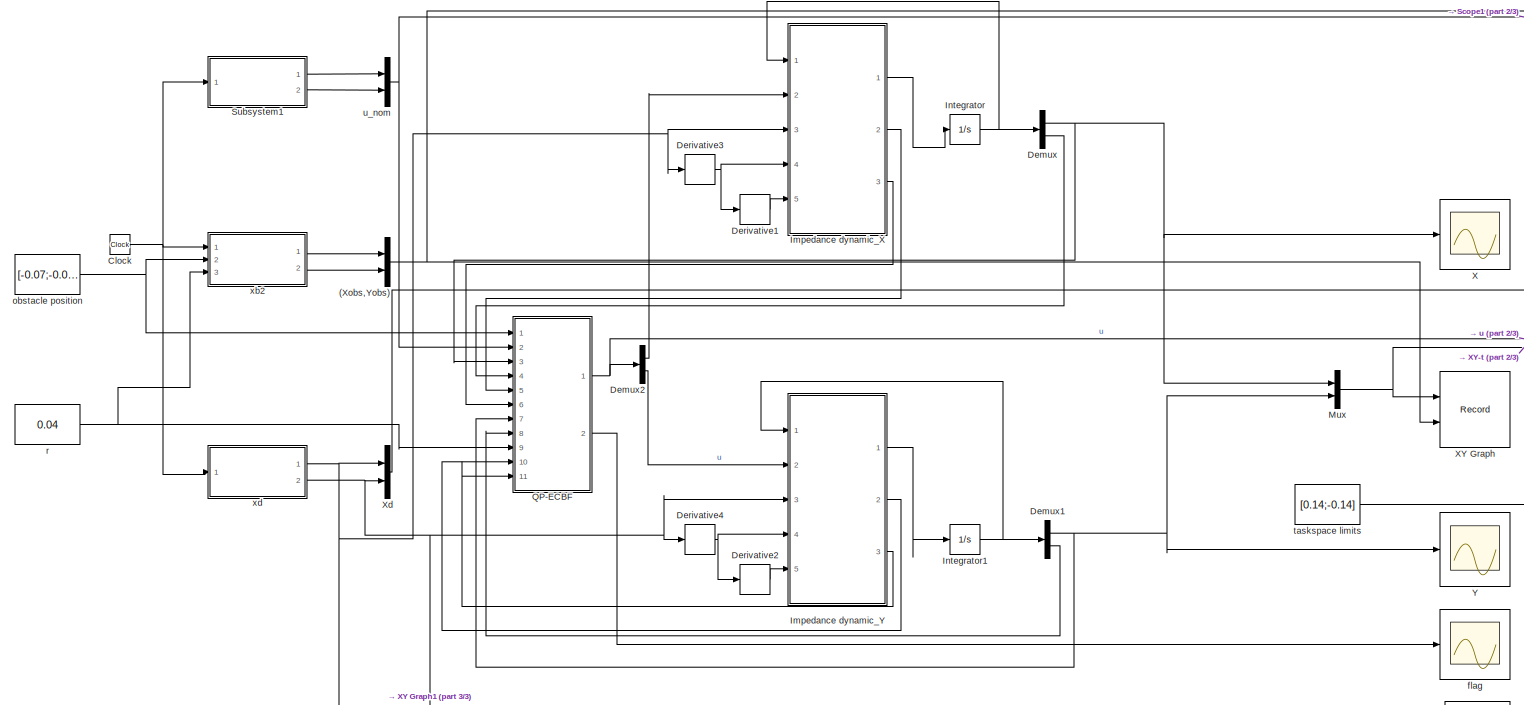
[diagram: root canvas - part 1/3, most of the canvas]
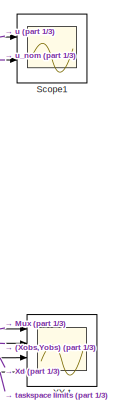
[diagram: root canvas - part 2/3, middle right region]
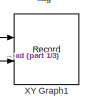
[diagram: root canvas - part 3/3, bottom right region]
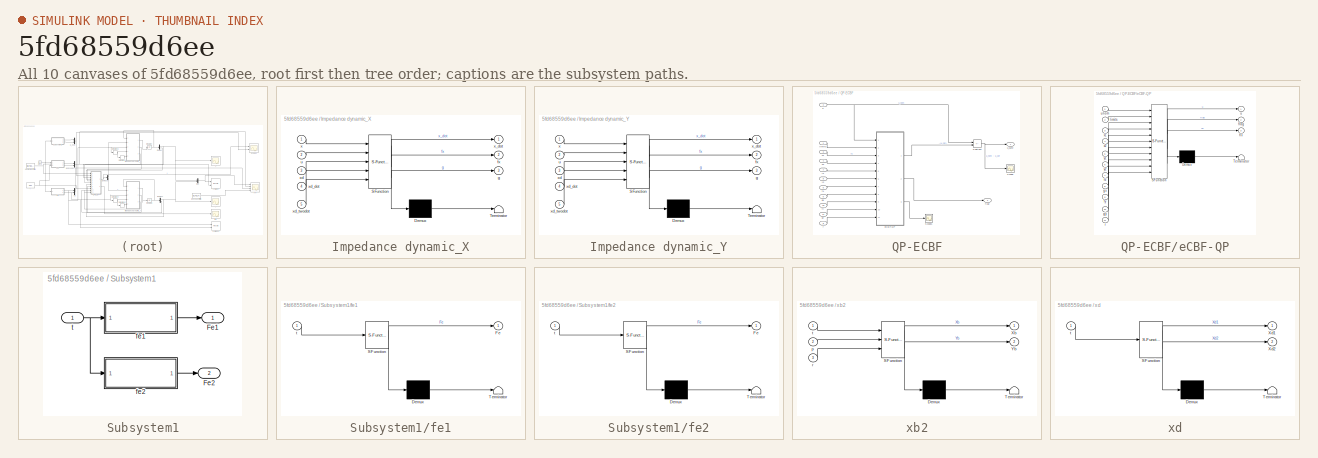
[diagram: thumbnail index - all 10 canvases of the model, root first then tree order]
MODEL slx_5fd68559d6ee
KIND model
CONFIG AbsTol = auto
CONFIG EnableMultiTasking = off
CONFIG FixedStep = 0.01
CONFIG MaxStep = auto
CONFIG MinStep = auto
CONFIG RelTol = 1e-3
CONFIG SampleTimeConstraint = Unconstrained
CONFIG SolverName = ode4
CONFIG StartTime = 0.0
CONFIG StopTime = 30
BLOCK [Mux] (Xobs,Yobs)
  DisplayOption = bar
  Inputs = 2
  NameLocation = left
  Ports = [2, 1]
BLOCK [Clock] Clock
BLOCK [Demux] Demux
  Outputs = 2
  Ports = [1, 2]
BLOCK [Demux] Demux1
  Outputs = 2
  Ports = [1, 2]
BLOCK [Demux] Demux2
  Outputs = 2
  Ports = [1, 2]
BLOCK [Derivative] Derivative1
BLOCK [Derivative] Derivative2
BLOCK [Derivative] Derivative3
BLOCK [Derivative] Derivative4
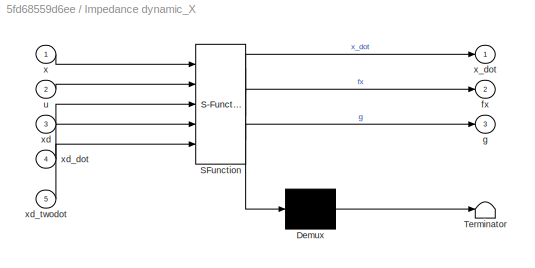
BLOCK [SubSystem] Impedance dynamic_X
  ErrorFcn = Stateflow.Translate.translate
  PermitHierarchicalResolution = ExplicitOnly
  Ports = [5, 3]
  RequestExecContextInheritance = off
  SFBlockType = MATLAB Function
  TreatAsAtomicUnit = on
BLOCK [Demux] Impedance dynamic_X/ Demux 
  Outputs = 1
  Ports = [1, 1]
BLOCK [S-Function] Impedance dynamic_X/ SFunction 
  EnableBusSupport = on
  FunctionName = sf_sfun
  PortCounts = [5 4]
  Ports = [5, 4]
  SFcnIsStateOwnerBlock = off
  SFunctionDeploymentMode = off
  Tag = Stateflow S-Function 7
BLOCK [Terminator] Impedance dynamic_X/ Terminator 
BLOCK [Outport] Impedance dynamic_X/fx
  Port = 2
BLOCK [Outport] Impedance dynamic_X/g
  Port = 3
BLOCK [Inport] Impedance dynamic_X/u
  Port = 2
BLOCK [Inport] Impedance dynamic_X/x
BLOCK [Outport] Impedance dynamic_X/x_dot
BLOCK [Inport] Impedance dynamic_X/xd
  Port = 3
BLOCK [Inport] Impedance dynamic_X/xd_dot
  Port = 4
BLOCK [Inport] Impedance dynamic_X/xd_twodot
  Port = 5
BLOCK [SubSystem] Impedance dynamic_Y
  ErrorFcn = Stateflow.Translate.translate
  PermitHierarchicalResolution = ExplicitOnly
  Ports = [5, 3]
  RequestExecContextInheritance = off
  SFBlockType = MATLAB Function
  TreatAsAtomicUnit = on
BLOCK [Demux] Impedance dynamic_Y/ Demux 
  Outputs = 1
  Ports = [1, 1]
BLOCK [S-Function] Impedance dynamic_Y/ SFunction 
  EnableBusSupport = on
  FunctionName = sf_sfun
  PortCounts = [5 4]
  Ports = [5, 4]
  SFcnIsStateOwnerBlock = off
  SFunctionDeploymentMode = off
  Tag = Stateflow S-Function 1
BLOCK [Terminator] Impedance dynamic_Y/ Terminator 
BLOCK [Outport] Impedance dynamic_Y/fx
  Port = 2
BLOCK [Outport] Impedance dynamic_Y/g
  Port = 3
BLOCK [Inport] Impedance dynamic_Y/u
  Port = 2
BLOCK [Inport] Impedance dynamic_Y/x
BLOCK [Outport] Impedance dynamic_Y/x_dot
BLOCK [Inport] Impedance dynamic_Y/xd
  Port = 3
BLOCK [Inport] Impedance dynamic_Y/xd_dot
  Port = 4
BLOCK [Inport] Impedance dynamic_Y/xd_twodot
  Port = 5
BLOCK [Integrator] Integrator
  InitialCondition = [0.14;0]
  Ports = [1, 1]
BLOCK [Integrator] Integrator1
  InitialCondition = [0;0]
  Ports = [1, 1]
BLOCK [Mux] Mux
  DisplayOption = bar
  Inputs = 2
  Ports = [2, 1]
BLOCK [SubSystem] QP-ECBF
  Ports = [11, 2]
  RequestExecContextInheritance = off
BLOCK [Scope] QP-ECBF/Scope
  Floating = off
  NumInputPorts = 1
  Ports = [1]
  ScopeSpecificationString = Simulink.scopes.TimeScopeBlockCfg('CurrentConfiguration', extmgr.ConfigurationSet(extmgr.Configuration('Core','General UI',true),extmgr.Configuration('Core','Source UI',true),extmgr.Configuration('Sources','WiredSimulink',true,'DataLoggingVariableName','ScopeData1'),extmgr.Configuration('Visuals','Time Domain',true,'SerializedDisplays',{struct('MinYLimReal','-74.07676','MaxYLimReal','62.38981','YL...<+1473ch>
BLOCK [Scope] QP-ECBF/Scope1
  Floating = off
  NumInputPorts = 1
  Ports = [1]
  ScopeSpecificationString = Simulink.scopes.TimeScopeBlockCfg('CurrentConfiguration', extmgr.ConfigurationSet(extmgr.Configuration('Core','General UI',true),extmgr.Configuration('Core','Source UI',true),extmgr.Configuration('Sources','WiredSimulink',true,'DataLoggingVariableName','ScopeData2'),extmgr.Configuration('Visuals','Time Domain',true,'SerializedDisplays',{struct('MinYLimReal','-0.00755','MaxYLimReal','0.06731','YLab...<+1444ch>
BLOCK [Sum] QP-ECBF/Subtract
  IconShape = rectangular
  Inputs = +-
  Ports = [2, 1]
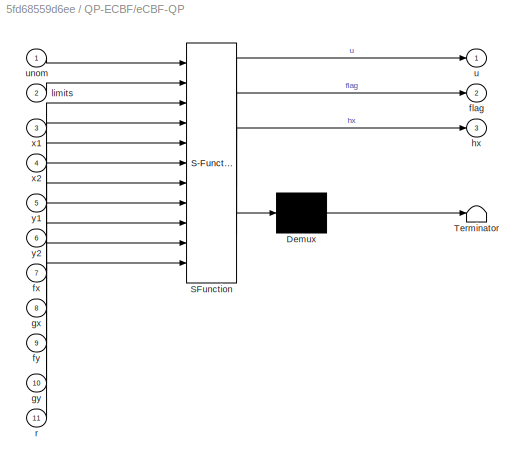
BLOCK [SubSystem] QP-ECBF/eCBF-QP
  ErrorFcn = Stateflow.Translate.translate
  PermitHierarchicalResolution = ExplicitOnly
  Ports = [11, 3]
  RequestExecContextInheritance = off
  SFBlockType = MATLAB Function
  TreatAsAtomicUnit = on
BLOCK [Demux] QP-ECBF/eCBF-QP/ Demux 
  Outputs = 1
  Ports = [1, 1]
BLOCK [S-Function] QP-ECBF/eCBF-QP/ SFunction 
  EnableBusSupport = on
  FunctionName = sf_sfun
  PortCounts = [11 4]
  Ports = [11, 4]
  SFcnIsStateOwnerBlock = off
  SFunctionDeploymentMode = off
  Tag = Stateflow S-Function 6
BLOCK [Terminator] QP-ECBF/eCBF-QP/ Terminator 
BLOCK [Outport] QP-ECBF/eCBF-QP/flag
  Port = 2
BLOCK [Inport] QP-ECBF/eCBF-QP/fx
  Port = 7
BLOCK [Inport] QP-ECBF/eCBF-QP/fy
  Port = 9
BLOCK [Inport] QP-ECBF/eCBF-QP/gx
  Port = 8
BLOCK [Inport] QP-ECBF/eCBF-QP/gy
  Port = 10
BLOCK [Outport] QP-ECBF/eCBF-QP/hx
  Port = 3
BLOCK [Inport] QP-ECBF/eCBF-QP/limits
  Port = 2
BLOCK [Inport] QP-ECBF/eCBF-QP/r
  Port = 11
BLOCK [Outport] QP-ECBF/eCBF-QP/u
BLOCK [Inport] QP-ECBF/eCBF-QP/unom
BLOCK [Inport] QP-ECBF/eCBF-QP/x1
  Port = 3
BLOCK [Inport] QP-ECBF/eCBF-QP/x2
  Port = 4
BLOCK [Inport] QP-ECBF/eCBF-QP/y1
  Port = 5
BLOCK [Inport] QP-ECBF/eCBF-QP/y2
  Port = 6
BLOCK [Outport] QP-ECBF/flag
  Port = 2
BLOCK [Inport] QP-ECBF/fx
  Port = 5
BLOCK [Inport] QP-ECBF/fy
  Port = 10
BLOCK [Inport] QP-ECBF/gx
  Port = 6
BLOCK [Inport] QP-ECBF/gy
  Port = 11
BLOCK [Inport] QP-ECBF/limits
  NameLocation = left
BLOCK [Inport] QP-ECBF/r
  Port = 9
BLOCK [Inport] QP-ECBF/u
  NameLocation = left
  Port = 2
BLOCK [Outport] QP-ECBF/u_safe
  NameLocation = right
BLOCK [Inport] QP-ECBF/x1
  Port = 3
BLOCK [Inport] QP-ECBF/x2
  Port = 4
BLOCK [Inport] QP-ECBF/y1
  Port = 7
BLOCK [Inport] QP-ECBF/y2
  Port = 8
BLOCK [Scope] Scope1
  Floating = off
  NumInputPorts = 2
  Ports = [2]
  ScopeSpecificationString = Simulink.scopes.TimeScopeBlockCfg('CurrentConfiguration', extmgr.ConfigurationSet(extmgr.Configuration('Core','General UI',true),extmgr.Configuration('Core','Source UI',true),extmgr.Configuration('Sources','WiredSimulink',true,'DataLoggingVariableName','fe','DataLogging',true,'DataLoggingSaveFormat','StructureWithTime'),extmgr.Configuration('Visuals','Time Domain',true,'SerializedDisplays',{struct...<+1497ch>
BLOCK [SubSystem] Subsystem1
  Ports = [1, 2]
  RequestExecContextInheritance = off
BLOCK [Outport] Subsystem1/Fe1
BLOCK [Outport] Subsystem1/Fe2
  Port = 2
BLOCK [SubSystem] Subsystem1/fe1
  ErrorFcn = Stateflow.Translate.translate
  PermitHierarchicalResolution = ExplicitOnly
  Ports = [1, 1]
  RequestExecContextInheritance = off
  SFBlockType = MATLAB Function
  TreatAsAtomicUnit = on
BLOCK [Demux] Subsystem1/fe1/ Demux 
  Outputs = 1
  Ports = [1, 1]
BLOCK [S-Function] Subsystem1/fe1/ SFunction 
  EnableBusSupport = on
  FunctionName = sf_sfun
  PortCounts = [1 2]
  Ports = [1, 2]
  SFcnIsStateOwnerBlock = off
  SFunctionDeploymentMode = off
  Tag = Stateflow S-Function 2
BLOCK [Terminator] Subsystem1/fe1/ Terminator 
BLOCK [Outport] Subsystem1/fe1/Fe
BLOCK [Inport] Subsystem1/fe1/t
BLOCK [SubSystem] Subsystem1/fe2
  ErrorFcn = Stateflow.Translate.translate
  PermitHierarchicalResolution = ExplicitOnly
  Ports = [1, 1]
  RequestExecContextInheritance = off
  SFBlockType = MATLAB Function
  TreatAsAtomicUnit = on
BLOCK [Demux] Subsystem1/fe2/ Demux 
  Outputs = 1
  Ports = [1, 1]
BLOCK [S-Function] Subsystem1/fe2/ SFunction 
  EnableBusSupport = on
  FunctionName = sf_sfun
  PortCounts = [1 2]
  Ports = [1, 2]
  SFcnIsStateOwnerBlock = off
  SFunctionDeploymentMode = off
  Tag = Stateflow S-Function 4
BLOCK [Terminator] Subsystem1/fe2/ Terminator 
BLOCK [Outport] Subsystem1/fe2/Fe
BLOCK [Inport] Subsystem1/fe2/t
BLOCK [Inport] Subsystem1/t
BLOCK [Scope] X
  Floating = off
  NumInputPorts = 1
  Ports = [1]
  ScopeSpecificationString = Simulink.scopes.TimeScopeBlockCfg('CurrentConfiguration', extmgr.ConfigurationSet(extmgr.Configuration('Core','General UI',true),extmgr.Configuration('Core','Source UI',true),extmgr.Configuration('Sources','WiredSimulink',true,'DataLoggingVariableName','ScopeData1'),extmgr.Configuration('Visuals','Time Domain',true,'SerializedDisplays',{struct('MinYLimReal','-0.15066','MaxYLimReal','0.20888','YLab...<+1397ch>
BLOCK [Record] XY Graph
  CompatibilityTag = XY
  FileSettingsInternal = {"entries":[{"content":{"excelSettings":{"content":{},"type":"Streamout.ExcelSettings"}},"type":"Streamout.FileSettingStorage","uuid":"2cb9fd5d-0c84-4006-89a3-e297fa6ee1b5"}],"packageUris":["http://schema.mathworks.com/mf0/streamout_blocks/R2020a"],"version":"1.0"}
  Layout = [1 1]
  Ports = [2]
  SignalsInternal = {"entries":[{"content":{"signals":[{"content":{"blockPath":["Safety_filter_obstacle_run/XY Graph"],"channel":[],"dimensions":[2],"domain":"Safety_filter_obstacle_run/XY Graph","hasChildren":true,"lineColor":"#fe330a","plots":[],"port":1,"sid":[""],"signalID":5016,"signalName":"Mux"},"type":"RecordBlkView.Signal","uuid":"6b362bb2-f6dd-4a03-85b8-156c16026f8e"},{"content":{"blockPath":["Safety_filter...<+1787ch>
  VisualizationBindings = {"xyplotplugin":{"info":[{"series":[{"bindingParametersList":[{"parameter":"X-Axis","signalID":5022,"signalName":"(Xobs,Yobs)(1)"},{"parameter":"Y-Axis","signalID":5036,"signalName":"(Xobs,Yobs)(2)"}],"seriesID":588},{"bindingParametersList":[{"parameter":"X-Axis","signalID":5017,"signalName":"Mux(1)"},{"parameter":"Y-Axis","signalID":5035,"signalName":"Mux(2)"}],"seriesID":13609}],"subplotID":1}]...<+2ch>
  st = -1
BLOCK [Record] XY Graph1
  CompatibilityTag = XY
  FileSettingsInternal = {"entries":[{"content":{"excelSettings":{"content":{},"type":"Streamout.ExcelSettings"}},"type":"Streamout.FileSettingStorage","uuid":"2cef4229-92dc-4655-bad0-2b3161d59ac8"}],"packageUris":["http://schema.mathworks.com/mf0/streamout_blocks/R2020a"],"version":"1.0"}
  Layout = [1 1]
  Ports = [2]
  SignalsInternal = {"entries":[{"content":{"signals":[{"content":{"blockPath":["Safety_filter_obstacle_run/XY Graph1"],"channel":[],"dimensions":[1],"domain":"Safety_filter_obstacle_run/XY Graph1","lineColor":"#a2142f","plots":[1],"port":1,"sid":[""],"signalID":5026,"signalName":"xd:1"},"type":"RecordBlkView.Signal","uuid":"d43ebe69-de7a-456f-bba9-24daebe6bc4b"},{"content":{"blockPath":["Safety_filter_obstacle_run/X...<+433ch>
  VisualizationBindings = {"xyplotplugin":{"info":[{"series":[{"bindingParametersList":[{"parameter":"X-Axis","signalID":5026,"signalName":"xd:1"},{"parameter":"Y-Axis","signalID":5030,"signalName":"xd:2"}],"seriesID":51409}],"subplotID":1}]}}
BLOCK [Scope] XY-t
  Floating = off
  NumInputPorts = 4
  Ports = [4]
  ScopeSpecificationString = Simulink.scopes.TimeScopeBlockCfg('CurrentConfiguration', extmgr.ConfigurationSet(extmgr.Configuration('Core','General UI',true),extmgr.Configuration('Core','Source UI',true),extmgr.Configuration('Sources','WiredSimulink',true,'DataLoggingVariableName','XYdata','DataLogging',true,'DataLoggingSaveFormat','StructureWithTime'),extmgr.Configuration('Visuals','Time Domain',true,'SerializedDisplays',{st...<+1553ch>
BLOCK [Mux] Xd
  DisplayOption = bar
  Inputs = 2
  NameLocation = left
  Ports = [2, 1]
BLOCK [Scope] Y
  Floating = off
  NumInputPorts = 1
  Ports = [1]
  ScopeSpecificationString = Simulink.scopes.TimeScopeBlockCfg('CurrentConfiguration', extmgr.ConfigurationSet(extmgr.Configuration('Core','General UI',true),extmgr.Configuration('Core','Source UI',true),extmgr.Configuration('Sources','WiredSimulink',true,'DataLoggingVariableName','ScopeData3'),extmgr.Configuration('Visuals','Time Domain',true,'SerializedDisplays',{struct('MinYLimReal','-0.13895','MaxYLimReal','0.17141','YLab...<+1398ch>
BLOCK [Scope] flag
  Floating = off
  NumInputPorts = 1
  Ports = [1]
  ScopeSpecificationString = Simulink.scopes.TimeScopeBlockCfg('CurrentConfiguration', extmgr.ConfigurationSet(extmgr.Configuration('Core','General UI',true),extmgr.Configuration('Core','Source UI',true),extmgr.Configuration('Sources','WiredSimulink',true,'DataLoggingVariableName','ScopeData3'),extmgr.Configuration('Visuals','Time Domain',true,'SerializedDisplays',{struct('MinYLimReal','0.9','MaxYLimReal','1.1','YLabelReal','...<+1374ch>
BLOCK [Constant] obstacle position
  NameLocation = top
  SampleTime = -1
  Value = [-0.07;-0.07]
  VectorParams1D = off
BLOCK [Constant] r
  NameLocation = top
  SampleTime = -1
  Value = 0.04
  VectorParams1D = off
BLOCK [Constant] taskspace limits
  NameLocation = top
  SampleTime = -1
  Value = [0.14;-0.14]
  VectorParams1D = off
BLOCK [Mux] u_nom
  DisplayOption = bar
  Inputs = 2
  NameLocation = left
  Ports = [2, 1]
BLOCK [SubSystem] xb2
  ErrorFcn = Stateflow.Translate.translate
  PermitHierarchicalResolution = ExplicitOnly
  Ports = [3, 2]
  RequestExecContextInheritance = off
  SFBlockType = MATLAB Function
  TreatAsAtomicUnit = on
BLOCK [Demux] xb2/ Demux 
  Outputs = 1
  Ports = [1, 1]
BLOCK [S-Function] xb2/ SFunction 
  EnableBusSupport = on
  FunctionName = sf_sfun
  PortCounts = [3 3]
  Ports = [3, 3]
  SFcnIsStateOwnerBlock = off
  SFunctionDeploymentMode = off
  Tag = Stateflow S-Function 13
BLOCK [Terminator] xb2/ Terminator 
BLOCK [Outport] xb2/Xb
BLOCK [Outport] xb2/Yb
  Port = 2
BLOCK [Inport] xb2/p
  Port = 2
BLOCK [Inport] xb2/r
  Port = 3
BLOCK [Inport] xb2/t
BLOCK [SubSystem] xd
  ErrorFcn = Stateflow.Translate.translate
  PermitHierarchicalResolution = ExplicitOnly
  Ports = [1, 2]
  RequestExecContextInheritance = off
  SFBlockType = MATLAB Function
  TreatAsAtomicUnit = on
BLOCK [Demux] xd/ Demux 
  Outputs = 1
  Ports = [1, 1]
BLOCK [S-Function] xd/ SFunction 
  EnableBusSupport = on
  FunctionName = sf_sfun
  PortCounts = [1 3]
  Ports = [1, 3]
  SFcnIsStateOwnerBlock = off
  SFunctionDeploymentMode = off
  Tag = Stateflow S-Function 5
BLOCK [Terminator] xd/ Terminator 
BLOCK [Outport] xd/Xd1
BLOCK [Outport] xd/Xd2
  Port = 2
BLOCK [Inport] xd/t
NET (Xobs,Yobs):1 -> XY Graph:2, XY-t:2
NET Clock:1 -> Subsystem1:1, xb2:1, xd:1
NET Demux1:1 -> Mux:2, QP-ECBF:7, Y:1
LINE Demux1:2 -> QP-ECBF:8
LINE Demux2:1 -> Impedance dynamic_X:2
LINE Demux2:2 -> Impedance dynamic_Y:2
NET Demux:1 -> Mux:1, QP-ECBF:3, X:1
LINE Demux:2 -> QP-ECBF:4
LINE Derivative1:1 -> Impedance dynamic_X:5
LINE Derivative2:1 -> Impedance dynamic_Y:5
NET Derivative3:1 -> Derivative1:1, Impedance dynamic_X:4
NET Derivative4:1 -> Derivative2:1, Impedance dynamic_Y:4
LINE Impedance dynamic_X:1 -> Integrator:1
LINE Impedance dynamic_X:2 -> QP-ECBF:5
LINE Impedance dynamic_X:3 -> QP-ECBF:6
LINE Impedance dynamic_Y:1 -> Integrator1:1
LINE Impedance dynamic_Y:2 -> QP-ECBF:10
LINE Impedance dynamic_Y:3 -> QP-ECBF:11
NET Integrator1:1 -> Demux1:1, Impedance dynamic_Y:1
NET Integrator:1 -> Demux:1, Impedance dynamic_X:1
NET Mux:1 -> XY Graph:1, XY-t:1
NET QP-ECBF/Subtract:1 -> QP-ECBF/Scope:1, QP-ECBF/u_safe:1
LINE QP-ECBF/eCBF-QP:1 -> QP-ECBF/Subtract:2
LINE QP-ECBF/eCBF-QP:2 -> QP-ECBF/flag:1
LINE QP-ECBF/eCBF-QP:3 -> QP-ECBF/Scope1:1
LINE QP-ECBF/fx:1 -> QP-ECBF/eCBF-QP:7
LINE QP-ECBF/fy:1 -> QP-ECBF/eCBF-QP:9
LINE QP-ECBF/gx:1 -> QP-ECBF/eCBF-QP:8
LINE QP-ECBF/gy:1 -> QP-ECBF/eCBF-QP:10
LINE QP-ECBF/limits:1 -> QP-ECBF/eCBF-QP:2
LINE QP-ECBF/r:1 -> QP-ECBF/eCBF-QP:11
NET QP-ECBF/u:1 -> QP-ECBF/Subtract:1, QP-ECBF/eCBF-QP:1
LINE QP-ECBF/x1:1 -> QP-ECBF/eCBF-QP:3
LINE QP-ECBF/x2:1 -> QP-ECBF/eCBF-QP:4
LINE QP-ECBF/y1:1 -> QP-ECBF/eCBF-QP:5
LINE QP-ECBF/y2:1 -> QP-ECBF/eCBF-QP:6
NET QP-ECBF:1 -> Demux2:1, Scope1:1
LINE QP-ECBF:2 -> flag:1
LINE Subsystem1/fe1:1 -> Subsystem1/Fe1:1
LINE Subsystem1/fe2:1 -> Subsystem1/Fe2:1
NET Subsystem1/t:1 -> Subsystem1/fe1:1, Subsystem1/fe2:1
LINE Subsystem1:1 -> u_nom:1
LINE Subsystem1:2 -> u_nom:2
LINE Xd:1 -> XY-t:3
NET obstacle position:1 -> QP-ECBF:1, xb2:2
NET r:1 -> QP-ECBF:9, xb2:3
LINE taskspace limits:1 -> XY-t:4
NET u_nom:1 -> QP-ECBF:2, Scope1:2
LINE xb2:1 -> (Xobs,Yobs):1
LINE xb2:2 -> (Xobs,Yobs):2
NET xd:1 -> Derivative3:1, Impedance dynamic_X:3, XY Graph1:1, Xd:1
NET xd:2 -> Derivative4:1, Impedance dynamic_Y:3, XY Graph1:2, Xd:2
note: NET lines group one-source signal fan-out (src -> all destinations, sorted); 1:1 wires keep LINE
CHART Impedance dynamic_Y states=1 transitions=1
  STATE_LABEL 'eML_blk_kernel()'
  STATE_LABEL 'SCRIPT:\nfunction [x_dot,fx,g] = System(x,u,xd,xd_dot,xd_twodot)\n\n    km = 20;\n    kb = 20;                                                       \n    kk = 100;\n    fx = [x(2);\n        -(1/km)*(kb*(x(2)-xd_dot)+kk*(x(1)-xd)-km*xd_twodot)];\n    g = [0;km^(-1)];\n    x_dot = fx + g*u;\nend\n'
CHART Subsystem1/fe1 states=1 transitions=1
  STATE_LABEL 'eML_blk_kernel()'
  STATE_LABEL 'SCRIPT:\nfunction Fe  = External_force(t)\n\n   Fe = 0*(t<4|t>=11) + (1-cos(pi*t))*(t>=4&t<5) + 2*(t>=5&t<10) + (1+cos(pi*t))*(t>=10&t<11);\n\nend'
CHART Subsystem1/fe2 states=1 transitions=1
  STATE_LABEL 'eML_blk_kernel()'
  STATE_LABEL 'SCRIPT:\nfunction Fe  = External_force(t)\n\n   Fe = 0*(t<4|t>=11) + 2*(1-cos(pi*t))*(t>=4&t<5) + 4*(t>=5&t<10) + 2*(1+cos(pi*t))*(t>=10&t<11);\n\nend'
CHART xd states=1 transitions=1
  STATE_LABEL 'eML_blk_kernel()'
  STATE_LABEL 'SCRIPT:\nfunction [Xd1, Xd2] = Desired_traj(t)\n\n    Xd1=0.14*cos(0.5*t);\n    Xd2=0.14*sin(0.5*t);\n    \nend'
CHART QP-ECBF/eCBF-QP states=1 transitions=1
  STATE_LABEL 'eML_blk_kernel()'
  STATE_LABEL 'SCRIPT:\nfunction [u,flag,hx] = fcn(unom, limits, x1, x2,y1 ,y2 ,fx,gx,fy,gy,r)\n    %% Obstacle position\n    X_obs    = limits(1);\n    Y_obs    = limits(2);\n    fe_x = unom(1);\n    fe_y = unom(2);\n    %% ECBF Gains\n    k1 = 70;\n    k2 = 700;\n    r = r+0.01;\n    %% CBF \n    hx      = (x1 - X_obs)^2 + (y1 - Y_obs)^2 - r^2 ; \n    Lfhx    = 2*(x1 - X_obs)*x2 + 2*(y1 - Y_obs)*y2;\n    L2fhx_unom = 2*(x1 ...<+540ch>'
CHART Impedance dynamic_X states=1 transitions=1
  STATE_LABEL 'eML_blk_kernel()'
  STATE_LABEL 'SCRIPT:\nfunction [x_dot,fx,g] = System(x,u,xd,xd_dot,xd_twodot)\n\n    km = 20;\n    kb = 20;                                                       \n    kk = 100;\n    fx = [x(2);\n        -(1/km)*(kb*(x(2)-xd_dot)+kk*(x(1)-xd)-km*xd_twodot)];\n    g = [0;km^(-1)];\n    x_dot = fx + g*u;\nend\n'
CHART xb2 states=1 transitions=1
  STATE_LABEL 'eML_blk_kernel()'
  STATE_LABEL 'SCRIPT:\nfunction [Xb,Yb]  = Obstacles_traj(t,p,r)\n\nXb =  p(1) + r*cos(t);\nYb =  p(2) + r*sin(t);\n    \nend'
CHART  states=0 transitions=0
CHART  states=0 transitions=0
CHART  states=0 transitions=0
CHART  states=0 transitions=0
CHART  states=0 transitions=0
CHART  states=0 transitions=0
CHART  states=0 transitions=0
